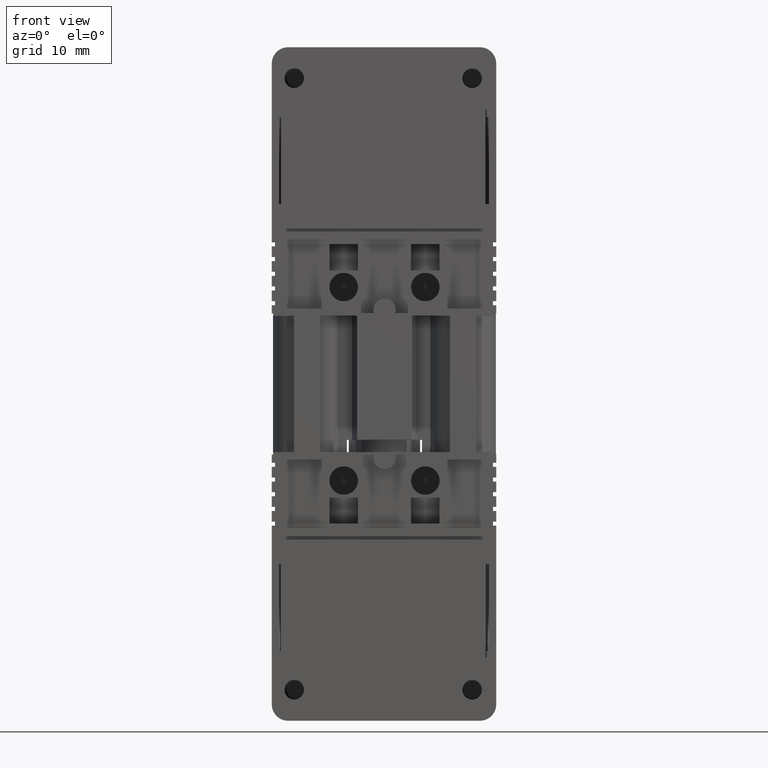
[diagram: clean part render]
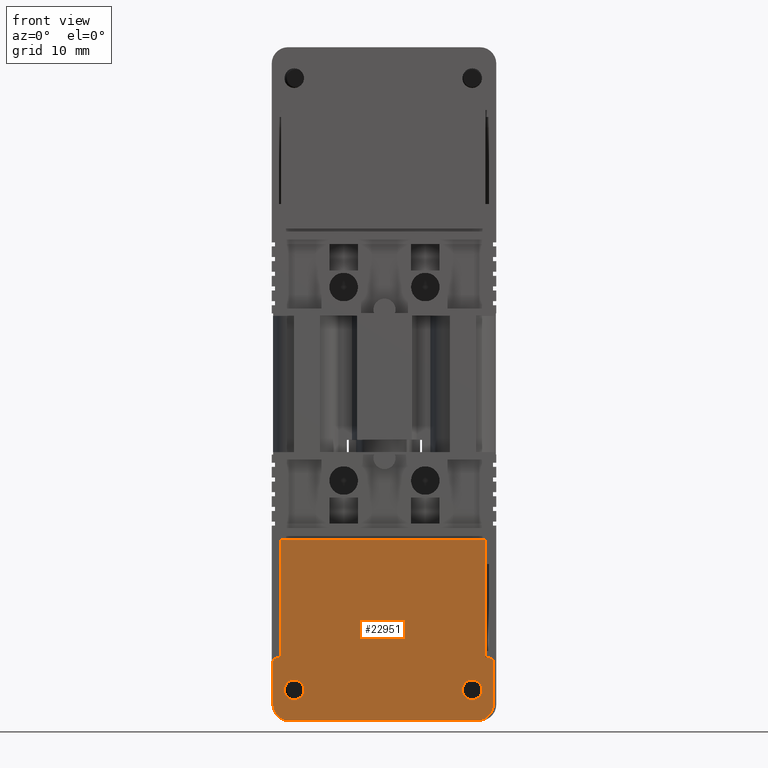
[diagram: same view with one face highlighted and labeled with its STEP entity id]
A machine part, front view. The second image highlights one B-rep face of the part: STEP entity #22951.
In plain terms, the highlighted planar face has unit normal (0, -1, 0).
Its self-contained STEP definition (entity closure, byte-faithful):
#1175 = CARTESIAN_POINT ( 'NONE',  ( 0.1499999999995393900, -11.29999999999992400, -32.29999999999832000 ) ) ;
#1185 = DIRECTION ( 'NONE',  ( 1.000000000000000000, 0.0000000000000000000, -6.372680161348397300E-014 ) ) ;
#1192 = LINE ( 'NONE', #1175, #26065 ) ;
#1195 = CARTESIAN_POINT ( 'NONE',  ( 27.14999999999955400, -11.29999999999992400, -32.30000000000006100 ) ) ;
#1197 = LINE ( 'NONE', #1195, #26000 ) ;
#1200 = DIRECTION ( 'NONE',  ( -6.372680161348397300E-014, 0.0000000000000000000, -1.000000000000000000 ) ) ;
#1220 = DIRECTION ( 'NONE',  ( 0.0000000000000000000, -1.000000000000000000, 0.0000000000000000000 ) ) ;
#1236 = LINE ( 'NONE', #1255, #25970 ) ;
#1245 = DIRECTION ( 'NONE',  ( 0.0000000000000000000, 0.0000000000000000000, -1.000000000000000000 ) ) ;
#1252 = CARTESIAN_POINT ( 'NONE',  ( 25.14999999999966800, -11.29999999999992400, -30.29999999999991900 ) ) ;
#1255 = CARTESIAN_POINT ( 'NONE',  ( 27.14999999999955400, -11.29999999999992400, -32.30000000000006100 ) ) ;
#1265 = DIRECTION ( 'NONE',  ( 6.372680161348397300E-014, 0.0000000000000000000, 1.000000000000000000 ) ) ;
#1274 = DIRECTION ( 'NONE',  ( -1.000000000000000000, 0.0000000000000000000, 6.372680161348397300E-014 ) ) ;
#1278 = LINE ( 'NONE', #1308, #25985 ) ;
#1308 = CARTESIAN_POINT ( 'NONE',  ( 1.150000000000026100, -11.29999999999992400, -24.59999999999838800 ) ) ;
#1316 = CARTESIAN_POINT ( 'NONE',  ( 2.149999999999666000, -11.29999999999992400, -30.29999999999844500 ) ) ;
#1342 = DIRECTION ( 'NONE',  ( 0.0000000000000000000, -1.000000000000000000, 0.0000000000000000000 ) ) ;
#1344 = DIRECTION ( 'NONE',  ( 0.0000000000000000000, 0.0000000000000000000, -1.000000000000000000 ) ) ;
#1417 = CARTESIAN_POINT ( 'NONE',  ( 24.54999999999978400, -11.29999999999992400, -28.49999999999985800 ) ) ;
#1420 = DIRECTION ( 'NONE',  ( -0.0000000000000000000, 1.000000000000000000, -0.0000000000000000000 ) ) ;
#1448 = DIRECTION ( 'NONE',  ( 0.0000000000000000000, 0.0000000000000000000, -1.000000000000000000 ) ) ;
#1507 = DIRECTION ( 'NONE',  ( -0.0000000000000000000, 1.000000000000000000, -0.0000000000000000000 ) ) ;
#1510 = LINE ( 'NONE', #1574, #23408 ) ;
#1520 = DIRECTION ( 'NONE',  ( 0.0000000000000000000, 0.0000000000000000000, -1.000000000000000000 ) ) ;
#1526 = CARTESIAN_POINT ( 'NONE',  ( 2.749999999999782400, -11.29999999999992400, -28.49999999999849000 ) ) ;
#1563 = DIRECTION ( 'NONE',  ( -1.000000000000000000, 0.0000000000000000000, 6.372680161348397300E-014 ) ) ;
#1574 = CARTESIAN_POINT ( 'NONE',  ( 1.150000000000026100, -11.29999999999992400, -24.59999999999838800 ) ) ;
#2117 = LINE ( 'NONE', #2121, #24021 ) ;
#2121 = CARTESIAN_POINT ( 'NONE',  ( 27.15000000000096100, -11.29999999999992400, -10.10000000000003500 ) ) ;
#2124 = DIRECTION ( 'NONE',  ( -1.000000000000000000, 0.0000000000000000000, 6.372680161348397300E-014 ) ) ;
#2236 = DIRECTION ( 'NONE',  ( -6.396607381706698500E-014, 0.0000000000000000000, -1.000000000000000000 ) ) ;
#2267 = LINE ( 'NONE', #2280, #24276 ) ;
#2269 = CARTESIAN_POINT ( 'NONE',  ( 1.150000000000026100, -11.29999999999992400, -24.59999999999838800 ) ) ;
#2278 = LINE ( 'NONE', #2269, #24191 ) ;
#2280 = CARTESIAN_POINT ( 'NONE',  ( 26.15000000000096100, -11.29999999999992400, -10.09999999999997300 ) ) ;
#2283 = DIRECTION ( 'NONE',  ( 6.384643771527546000E-014, 0.0000000000000000000, 1.000000000000000000 ) ) ;
#3071 = EDGE_CURVE ( 'NONE', #22015, #22044, #1197, .T. ) ;
#3075 = EDGE_CURVE ( 'NONE', #21856, #22012, #1192, .T. ) ;
#3085 = EDGE_CURVE ( 'NONE', #22044, #22086, #26008, .T. ) ;
#3096 = EDGE_CURVE ( 'NONE', #22086, #21840, #1236, .T. ) ;
#3103 = EDGE_CURVE ( 'NONE', #21844, #21981, #1278, .T. ) ;
#3125 = EDGE_CURVE ( 'NONE', #22012, #22015, #26175, .T. ) ;
#3138 = EDGE_CURVE ( 'NONE', #16750, #16754, #23331, .T. ) ;
#3173 = EDGE_CURVE ( 'NONE', #16854, #16665, #23377, .T. ) ;
#3189 = EDGE_CURVE ( 'NONE', #22049, #21949, #1510, .T. ) ;
#3356 = EDGE_CURVE ( 'NONE', #21650, #21664, #2117, .T. ) ;
#3397 = EDGE_CURVE ( 'NONE', #21664, #22049, #2278, .T. ) ;
#3401 = EDGE_CURVE ( 'NONE', #21981, #21650, #2267, .T. ) ;
#3744 = EDGE_CURVE ( 'NONE', #21856, #21949, #25164, .T. ) ;
#6702 = CARTESIAN_POINT ( 'NONE',  ( 1.150000000000955800, -11.29999999999992400, -10.09999999999838000 ) ) ;
#6729 = CARTESIAN_POINT ( 'NONE',  ( 26.15000000000099700, -11.29999999999992400, -10.09999999999997100 ) ) ;
#7376 = CARTESIAN_POINT ( 'NONE',  ( 26.65000000000000200, -11.29999999999992400, -25.10000000000000500 ) ) ;
#7377 = DIRECTION ( 'NONE',  ( -0.0000000000000000000, 1.000000000000000000, -0.0000000000000000000 ) ) ;
#7379 = DIRECTION ( 'NONE',  ( 0.0000000000000000000, 0.0000000000000000000, -1.000000000000000000 ) ) ;
#7742 = CARTESIAN_POINT ( 'NONE',  ( 2.749999999999782400, -11.29999999999992400, -29.69999999999849300 ) ) ;
#7818 = CARTESIAN_POINT ( 'NONE',  ( 24.54999999999978400, -11.29999999999992400, -27.29999999999985900 ) ) ;
#7826 = CARTESIAN_POINT ( 'NONE',  ( 2.749999999999782400, -11.29999999999992400, -27.29999999999849100 ) ) ;
#7844 = CARTESIAN_POINT ( 'NONE',  ( 24.54999999999978400, -11.29999999999992400, -29.69999999999985700 ) ) ;
#9626 = EDGE_LOOP ( 'NONE', ( #25731, #25647 ) ) ;
#9641 = EDGE_LOOP ( 'NONE', ( #25702, #25698 ) ) ;
#9661 = EDGE_LOOP ( 'NONE', ( #25750, #25736, #25710, #25696, #25704, #25708, #25645, #25748, #25737, #25656, #25749, #25679 ) ) ;
#13081 = EDGE_CURVE ( 'NONE', #21844, #21840, #14602, .T. ) ;
#13447 = CIRCLE ( 'NONE', #13511, 1.199999999999999700 ) ;
#13468 = AXIS2_PLACEMENT_3D ( 'NONE', #15558, #15584, #15547 ) ;
#13511 = AXIS2_PLACEMENT_3D ( 'NONE', #15423, #15444, #15409 ) ;
#13514 = CIRCLE ( 'NONE', #13468, 1.199999999999999700 ) ;
#14602 = CIRCLE ( 'NONE', #14606, 0.5000000000000004400 ) ;
#14606 = AXIS2_PLACEMENT_3D ( 'NONE', #7376, #7377, #7379 ) ;
#15064 = AXIS2_PLACEMENT_3D ( 'NONE', #28038, #28082, #28112 ) ;
#15409 = DIRECTION ( 'NONE',  ( 0.0000000000000000000, 0.0000000000000000000, -1.000000000000000000 ) ) ;
#15423 = CARTESIAN_POINT ( 'NONE',  ( 24.54999999999978400, -11.29999999999992400, -28.49999999999985800 ) ) ;
#15444 = DIRECTION ( 'NONE',  ( -0.0000000000000000000, 1.000000000000000000, -0.0000000000000000000 ) ) ;
#15547 = DIRECTION ( 'NONE',  ( 0.0000000000000000000, 0.0000000000000000000, -1.000000000000000000 ) ) ;
#15558 = CARTESIAN_POINT ( 'NONE',  ( 2.749999999999782400, -11.29999999999992400, -28.49999999999849000 ) ) ;
#15584 = DIRECTION ( 'NONE',  ( -0.0000000000000000000, 1.000000000000000000, -0.0000000000000000000 ) ) ;
#16665 = VERTEX_POINT ( 'NONE', #7742 ) ;
#16750 = VERTEX_POINT ( 'NONE', #7818 ) ;
#16754 = VERTEX_POINT ( 'NONE', #7844 ) ;
#16854 = VERTEX_POINT ( 'NONE', #7826 ) ;
#20361 = DIRECTION ( 'NONE',  ( -0.0000000000000000000, 1.000000000000000000, -0.0000000000000000000 ) ) ;
#20385 = CARTESIAN_POINT ( 'NONE',  ( 0.6499999999999978000, -11.29999999999992400, -25.09999999999835300 ) ) ;
#20387 = DIRECTION ( 'NONE',  ( 0.0000000000000000000, 0.0000000000000000000, -1.000000000000000000 ) ) ;
#20518 = CARTESIAN_POINT ( 'NONE',  ( 0.1499999999999982200, -11.29999999999992400, -25.09999999999831700 ) ) ;
#20542 = CARTESIAN_POINT ( 'NONE',  ( 26.65000000000003400, -11.29999999999992400, -24.60000000000001200 ) ) ;
#20556 = CARTESIAN_POINT ( 'NONE',  ( 27.15000000000000900, -11.29999999999992400, -25.10000000000003000 ) ) ;
#20650 = CARTESIAN_POINT ( 'NONE',  ( 0.6500000000000135700, -11.29999999999992400, -24.59999999999835700 ) ) ;
#20658 = CARTESIAN_POINT ( 'NONE',  ( 26.15000000000003400, -11.29999999999992400, -24.59999999999997300 ) ) ;
#20711 = CARTESIAN_POINT ( 'NONE',  ( 27.14999999999968200, -11.29999999999992400, -30.30000000000004000 ) ) ;
#20712 = CARTESIAN_POINT ( 'NONE',  ( 25.14999999999966800, -11.29999999999992400, -32.29999999999991200 ) ) ;
#20724 = CARTESIAN_POINT ( 'NONE',  ( 2.149999999999537600, -11.29999999999992400, -32.29999999999846200 ) ) ;
#20733 = CARTESIAN_POINT ( 'NONE',  ( 0.1499999999996642900, -11.29999999999992400, -30.29999999999838100 ) ) ;
#20744 = CARTESIAN_POINT ( 'NONE',  ( 1.150000000000026100, -11.29999999999992400, -24.59999999999838800 ) ) ;
#21650 = VERTEX_POINT ( 'NONE', #6729 ) ;
#21664 = VERTEX_POINT ( 'NONE', #6702 ) ;
#21840 = VERTEX_POINT ( 'NONE', #20556 ) ;
#21844 = VERTEX_POINT ( 'NONE', #20542 ) ;
#21856 = VERTEX_POINT ( 'NONE', #20518 ) ;
#21949 = VERTEX_POINT ( 'NONE', #20650 ) ;
#21981 = VERTEX_POINT ( 'NONE', #20658 ) ;
#22012 = VERTEX_POINT ( 'NONE', #20733 ) ;
#22015 = VERTEX_POINT ( 'NONE', #20724 ) ;
#22044 = VERTEX_POINT ( 'NONE', #20712 ) ;
#22049 = VERTEX_POINT ( 'NONE', #20744 ) ;
#22086 = VERTEX_POINT ( 'NONE', #20711 ) ;
#22951 = ADVANCED_FACE ( 'NONE', ( #28036, #28124, #28099 ), #28041, .T. ) ;
#23315 = AXIS2_PLACEMENT_3D ( 'NONE', #1526, #1507, #1520 ) ;
#23331 = CIRCLE ( 'NONE', #23422, 1.199999999999999700 ) ;
#23377 = CIRCLE ( 'NONE', #23315, 1.199999999999999700 ) ;
#23408 = VECTOR ( 'NONE', #1563, 1000.000000000000000 ) ;
#23422 = AXIS2_PLACEMENT_3D ( 'NONE', #1417, #1420, #1448 ) ;
#24021 = VECTOR ( 'NONE', #2124, 1000.000000000000000 ) ;
#24191 = VECTOR ( 'NONE', #2236, 1000.000000000000000 ) ;
#24276 = VECTOR ( 'NONE', #2283, 1000.000000000000000 ) ;
#25164 = CIRCLE ( 'NONE', #25168, 0.5000000000000004400 ) ;
#25168 = AXIS2_PLACEMENT_3D ( 'NONE', #20385, #20361, #20387 ) ;
#25645 = ORIENTED_EDGE ( 'NONE', *, *, #3075, .T. ) ;
#25647 = ORIENTED_EDGE ( 'NONE', *, *, #29300, .T. ) ;
#25656 = ORIENTED_EDGE ( 'NONE', *, *, #3085, .T. ) ;
#25679 = ORIENTED_EDGE ( 'NONE', *, *, #13081, .F. ) ;
#25696 = ORIENTED_EDGE ( 'NONE', *, *, #3397, .T. ) ;
#25698 = ORIENTED_EDGE ( 'NONE', *, *, #29336, .T. ) ;
#25702 = ORIENTED_EDGE ( 'NONE', *, *, #3173, .T. ) ;
#25704 = ORIENTED_EDGE ( 'NONE', *, *, #3189, .T. ) ;
#25708 = ORIENTED_EDGE ( 'NONE', *, *, #3744, .F. ) ;
#25710 = ORIENTED_EDGE ( 'NONE', *, *, #3356, .T. ) ;
#25731 = ORIENTED_EDGE ( 'NONE', *, *, #3138, .T. ) ;
#25736 = ORIENTED_EDGE ( 'NONE', *, *, #3401, .T. ) ;
#25737 = ORIENTED_EDGE ( 'NONE', *, *, #3071, .T. ) ;
#25748 = ORIENTED_EDGE ( 'NONE', *, *, #3125, .T. ) ;
#25749 = ORIENTED_EDGE ( 'NONE', *, *, #3096, .T. ) ;
#25750 = ORIENTED_EDGE ( 'NONE', *, *, #3103, .T. ) ;
#25970 = VECTOR ( 'NONE', #1265, 1000.000000000000000 ) ;
#25985 = VECTOR ( 'NONE', #1274, 1000.000000000000000 ) ;
#26000 = VECTOR ( 'NONE', #1185, 1000.000000000000000 ) ;
#26008 = CIRCLE ( 'NONE', #26015, 1.999999999999994900 ) ;
#26015 = AXIS2_PLACEMENT_3D ( 'NONE', #1252, #1220, #1245 ) ;
#26065 = VECTOR ( 'NONE', #1200, 1000.000000000000000 ) ;
#26175 = CIRCLE ( 'NONE', #26177, 2.000000000000001800 ) ;
#26177 = AXIS2_PLACEMENT_3D ( 'NONE', #1316, #1342, #1344 ) ;
#28036 = FACE_BOUND ( 'NONE', #9626, .T. ) ;
#28038 = CARTESIAN_POINT ( 'NONE',  ( 27.15000000000096100, -11.29999999999992400, -10.10000000000003500 ) ) ;
#28041 = PLANE ( 'NONE',  #15064 ) ;
#28082 = DIRECTION ( 'NONE',  ( 0.0000000000000000000, -1.000000000000000000, 0.0000000000000000000 ) ) ;
#28099 = FACE_OUTER_BOUND ( 'NONE', #9661, .T. ) ;
#28112 = DIRECTION ( 'NONE',  ( 0.0000000000000000000, -0.0000000000000000000, -1.000000000000000000 ) ) ;
#28124 = FACE_BOUND ( 'NONE', #9641, .T. ) ;
#29300 = EDGE_CURVE ( 'NONE', #16754, #16750, #13447, .T. ) ;
#29336 = EDGE_CURVE ( 'NONE', #16665, #16854, #13514, .T. ) ;